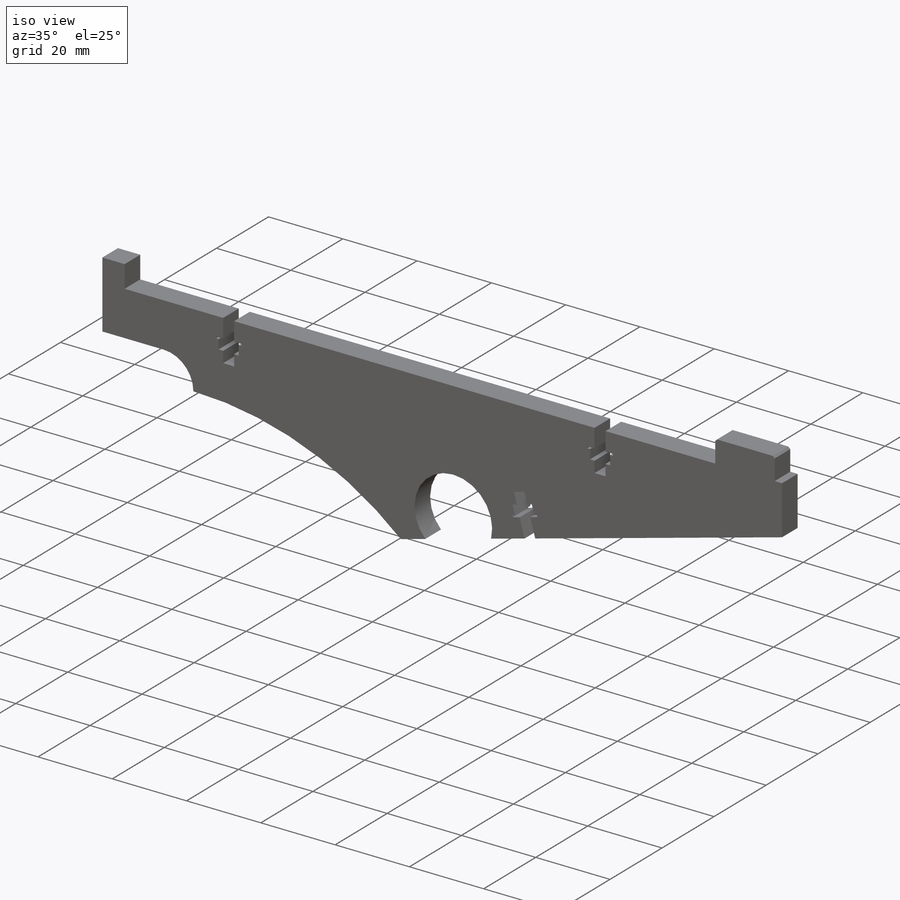
[diagram: iso view]
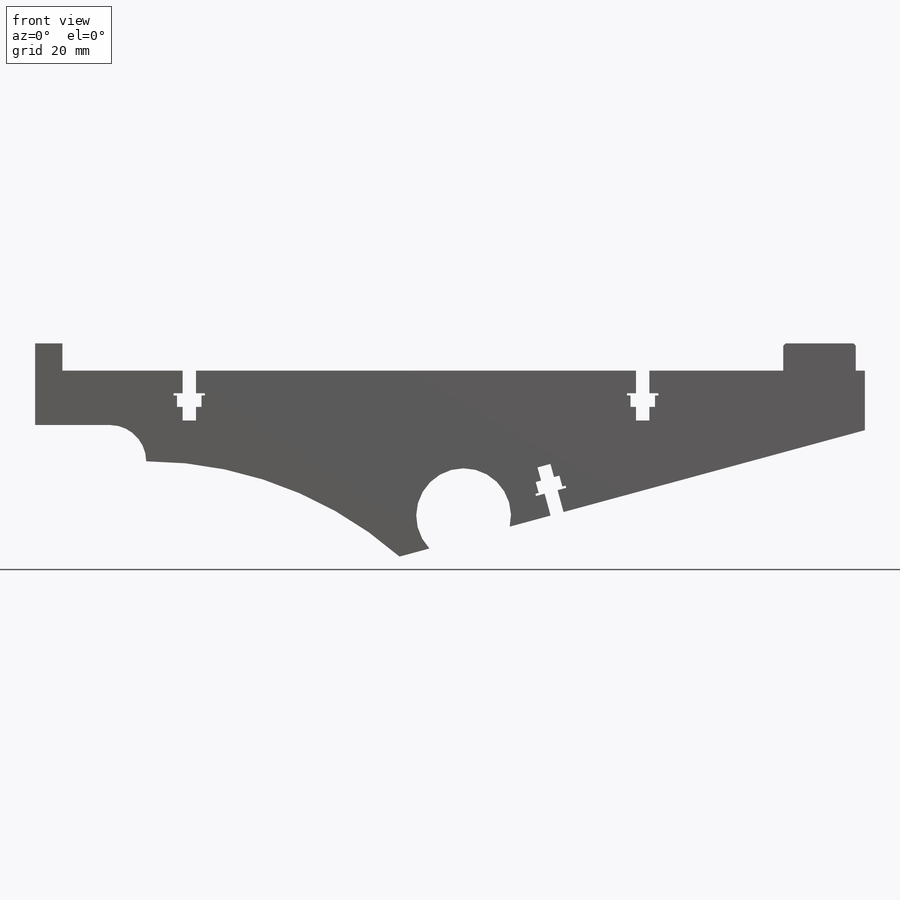
[diagram: front view]
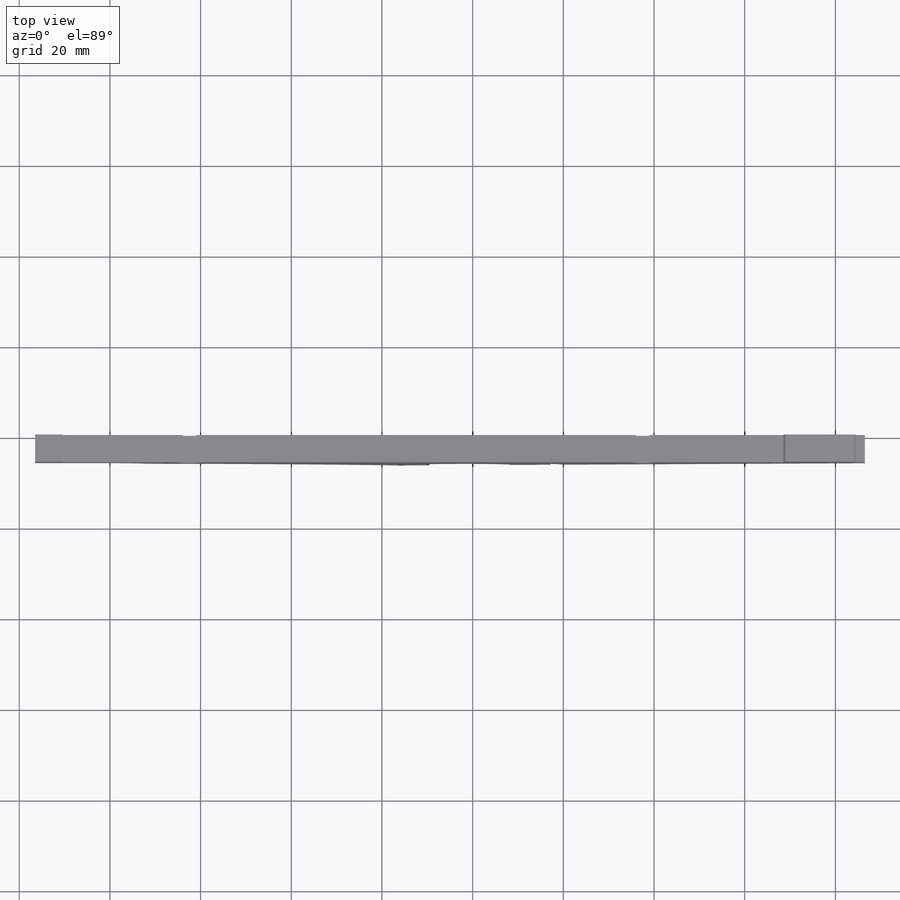
[diagram: top view]
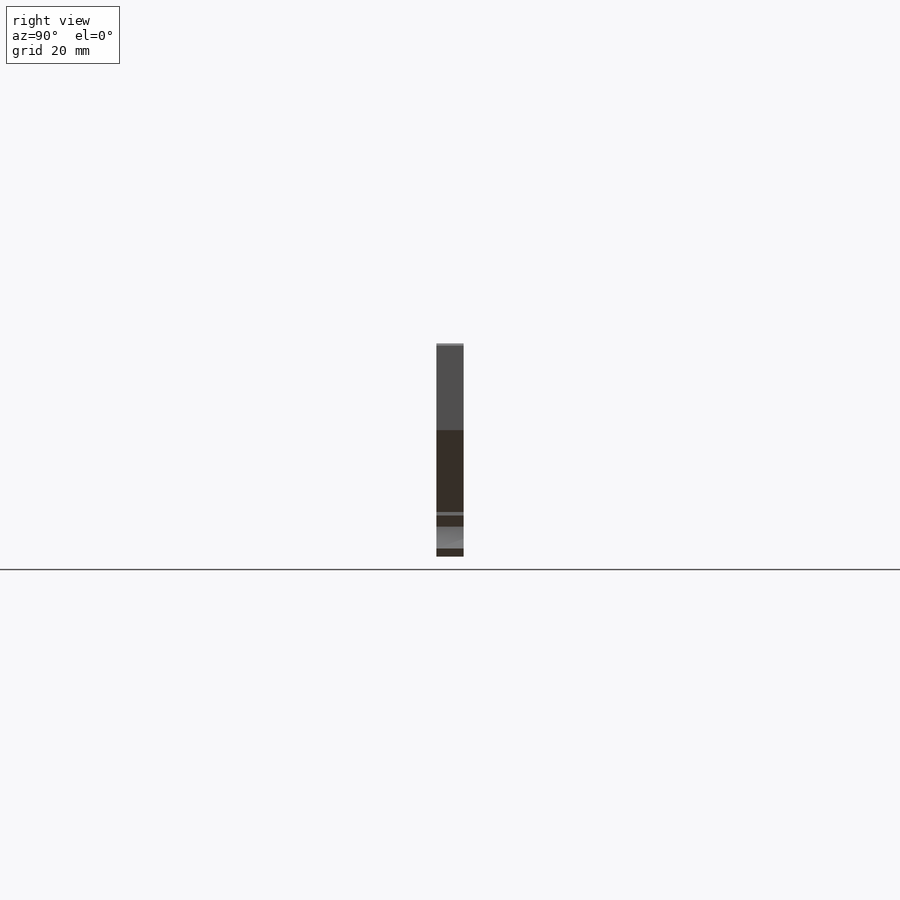
[diagram: right view]
SOLIDWORKS PART (.sldprt)
format: sldprt  version: not decoded by parser v0  size: 447,488 bytes
history: native  units: mm
features: sketch x2, chamfer x2, material x1, extrude x1, cut_extrude x1 (+13 scaffold rows collapsed)
feature tree (20):
  scaffold x13  (default folders/planes/origin — collapsed)
  material  "Oak"
  sketch  "Sketch1"  dims[c1.D1=12.0mm c1.D7=1.5mm c1.D23=20.9mm c1.D19=1.0mm c1.D2=181.0mm c1.D3=6.0mm c1.D4=16.5mm c1.D5=~64.020957mm c1.D6=20.0mm c2.D7=2.0mm c2.D8=10.0mm c2.D5=26.0mm c2.D9=15.0mm c2.D10=7.0mm c2.D11=3.0mm c2.D12=15.0mm c2.D13=1.9mm c2.D14=3.0mm c2.D15=7.0mm c2.D16=15.0mm c2.D17=5.0mm c2.D18=1.5mm c2.D19=1.2mm c2.D20=7.0mm c2.D21=11.0mm c2.D22=7.0mm c3.D18=1.6mm c3.D22=4.0mm c3.D23=10.0mm c3.D24=19.5mm c3.D25=0.5mm c3.D26=7.0mm c3.D27=5.5mm c3.D28=2.96mm c3.D29=7.0mm c3.D30=~0.304725mm c4.D30=45.0deg c4.D31=0.5mm c4.D32=3.0mm c4.D33=2.5mm c4.D34=1.0mm c4.D35=0.5mm c4.D5=5.0mm c4.D29=150.0mm c4.D8=10.0mm c4.D36=16.0mm c4.D37=6.0mm c4.D7=1.0mm c4.D19=1.1mm c4.D38=6.0mm c4.D39=4.5mm c4.D40=2.0mm c5.D38=4.0mm c5.D40=7.0mm c5.D41=~0.826665mm c5.D18=7.5mm c5.D5=7.5mm c5.D22=28.5mm c5.D23=2.96mm c5.D24=7.0mm c5.D25=5.5mm c5.D26=0.5mm c5.D27=2.5mm c5.D28=1.0mm c5.D30=12.0mm c5.D31=13.0mm c5.D7=6.0mm c5.D8=6.0mm c5.D32=3.0mm c5.D33=4.0mm c5.D4=10.5mm c6.D31=0.5mm c6.D8=156.0mm c6.D7=22.0mm c6.D23=3.0mm c6.D24=2.5mm c6.D12=13.0mm c6.D25=4.0mm c6.D26=2.0mm c6.D27=11.0mm c6.D28=3.0mm c6.D29=0.5mm c6.D30=2.5mm c7.D31=2.96mm c7.D33=6.9mm c7.D34=5.4mm c7.D35=28.0mm c7.D5=78.0mm c7.D7=12.0mm c7.D24=5.0mm c7.D25=5.0mm c7.D9=10.5mm c7.D12=6.0mm c7.D13=16.5mm c7.D15=100.0mm c7.D16=2.0mm c7.D17=16.0mm c7.D18=7.0mm c7.D20=3.7mm c7.D21=6.5mm c8.D25=26.0mm c8.D26=12.0mm c9.D25=16.5mm c9.D4=20.0mm c9.D6=12.0mm c9.D8=6.0mm c9.D9=181.0mm c9.D14=2.0]
  extrude  "Boss-Extrude1"  Depth=6mm
  chamfer  "Chamfer1"  Distance=3mm
  chamfer  "Chamfer2"  Distance=0.5mm Angle=45deg
  sketch  "Sketch2"  dims[c1.D1=2.96mm c1.D2=0.5mm c1.D3=2.5mm c1.D4=3.0mm c1.D5=~40.555463mm c2.D1=2.96mm c2.D2=6.9mm c2.D3=~1.559121mm c3.D3=90.0deg c4.D3=5.4mm c4.D4=0.5mm c4.D5=2.5mm c4.D6=3.0mm c4.D7=11.0mm c4.D8=20.0mm]
  cut_extrude  "Cut-Extrude1"  [1 undecoded]
decode coverage: 5 of 6 modeling features carry decoded parameters
note: ~ marks probable driven/reference dimensions
note: 1 parameter value undecoded
note: suppression state not decoded; provenance and decode notes live in map.json
